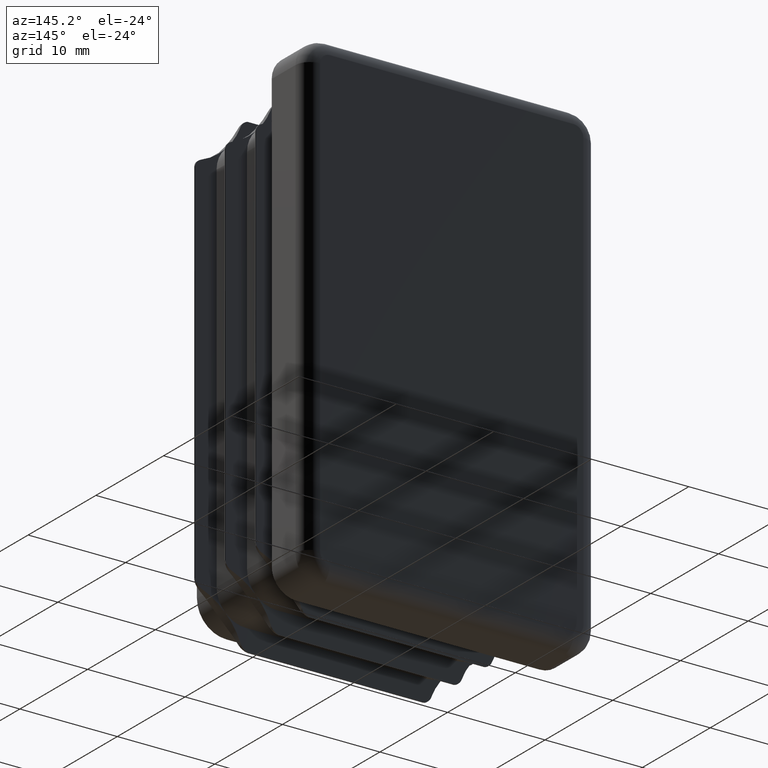
[diagram: clean part render]
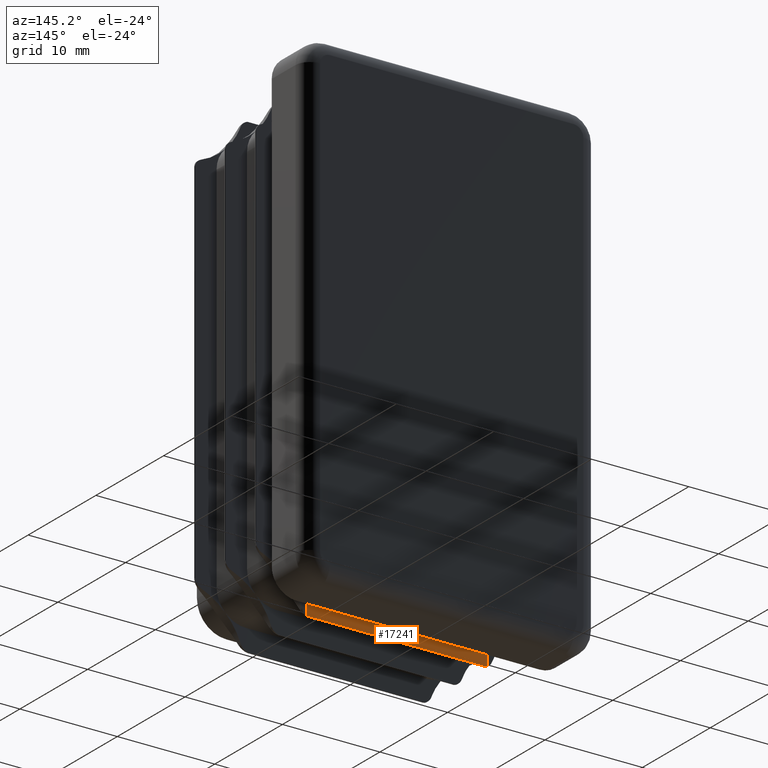
[diagram: same view with one face highlighted and labeled with its STEP entity id]
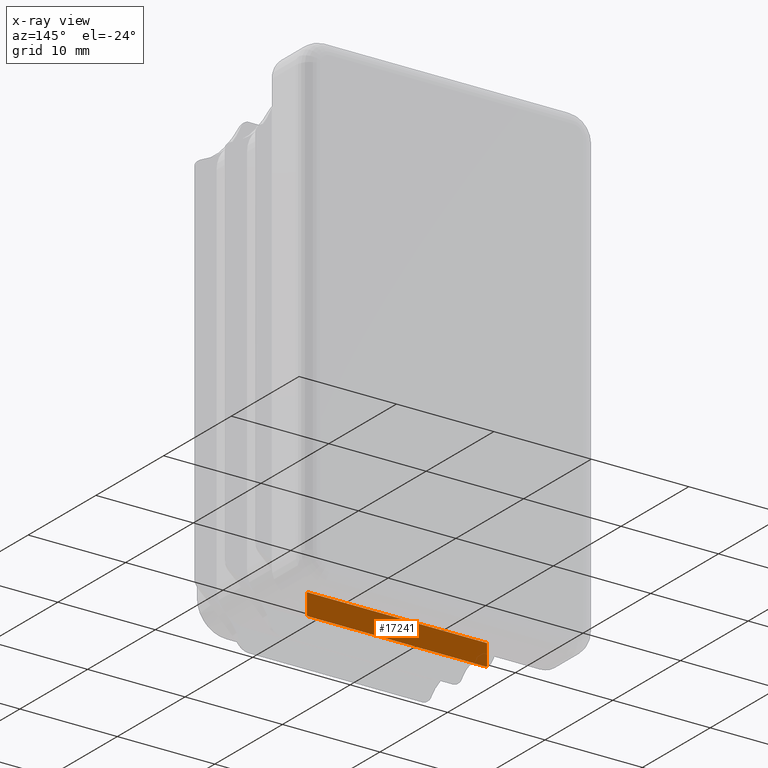
[diagram: x-ray of the same camera — body ghosted, the highlighted face saturated]
A machine part, auxiliary view. The second image highlights one B-rep face of the part: STEP entity #17241.
The next image is the same camera in x-ray: the body ghosted, the highlighted face saturated — about 0% of this face is hidden behind the body in this view.
In plain terms, the highlighted planar face has unit normal (0, -1, 0).
Its self-contained STEP definition (entity closure, byte-faithful):
#299 = DIRECTION ( 'NONE',  ( -1.000000000000000000, 0.000000000000000000, 0.000000000000000000 ) ) ;
#422 = DIRECTION ( 'NONE',  ( 0.000000000000000000, -0.000000000000000000, -1.000000000000000000 ) ) ;
#1007 = DIRECTION ( 'NONE',  ( -0.000000000000000000, -1.000000000000000000, 0.000000000000000000 ) ) ;
#1976 = EDGE_CURVE ( 'NONE', #7626, #16715, #4532, .T. ) ;
#2172 = DIRECTION ( 'NONE',  ( 0.000000000000000000, -1.000000000000000000, 0.000000000000000000 ) ) ;
#2495 = CARTESIAN_POINT ( 'NONE',  ( -9.249999999999994671, -3.100000000000000533, -22.24999999999999289 ) ) ;
#2686 = CARTESIAN_POINT ( 'NONE',  ( 9.250000000000008882, -3.100000000000000533, -24.40981028720144508 ) ) ;
#2795 = CIRCLE ( 'NONE', #14216, 1.000000000000000888 ) ;
#3566 = VECTOR ( 'NONE', #299, 1000.000000000000000 ) ;
#3893 = EDGE_CURVE ( 'NONE', #10647, #14397, #2795, .T. ) ;
#4283 = ORIENTED_EDGE ( 'NONE', *, *, #1976, .F. ) ;
#4532 = LINE ( 'NONE', #7723, #12044 ) ;
#6237 = ORIENTED_EDGE ( 'NONE', *, *, #3893, .F. ) ;
#6547 = CARTESIAN_POINT ( 'NONE',  ( 9.250000000000008882, -3.100000000000000533, -22.24999999999999289 ) ) ;
#7002 = ORIENTED_EDGE ( 'NONE', *, *, #18115, .F. ) ;
#7391 = CARTESIAN_POINT ( 'NONE',  ( 8.834975613604962419, -3.100000000000000533, -23.50000000000008527 ) ) ;
#7457 = DIRECTION ( 'NONE',  ( 0.000000000000000000, 1.000000000000000000, -0.000000000000000000 ) ) ;
#7626 = VERTEX_POINT ( 'NONE', #2686 ) ;
#7723 = CARTESIAN_POINT ( 'NONE',  ( 9.250000000000008882, -3.100000000000000533, -22.24999999999999289 ) ) ;
#7992 = FACE_OUTER_BOUND ( 'NONE', #8518, .T. ) ;
#8195 = LINE ( 'NONE', #15744, #3566 ) ;
#8379 = AXIS2_PLACEMENT_3D ( 'NONE', #7391, #7457, #16776 ) ;
#8518 = EDGE_LOOP ( 'NONE', ( #6237, #18678, #7002, #4283, #9767, #10468 ) ) ;
#9018 = CARTESIAN_POINT ( 'NONE',  ( -9.249999999999994671, -3.100000000000000533, -24.40981028720145218 ) ) ;
#9767 = ORIENTED_EDGE ( 'NONE', *, *, #19814, .T. ) ;
#10468 = ORIENTED_EDGE ( 'NONE', *, *, #15587, .T. ) ;
#10647 = VERTEX_POINT ( 'NONE', #9018 ) ;
#11203 = PLANE ( 'NONE',  #18467 ) ;
#12044 = VECTOR ( 'NONE', #12291, 1000.000000000000000 ) ;
#12291 = DIRECTION ( 'NONE',  ( 4.505775262277420615E-16, -0.000000000000000000, 1.000000000000000000 ) ) ;
#12336 = EDGE_CURVE ( 'NONE', #10647, #13585, #12742, .T. ) ;
#12523 = VECTOR ( 'NONE', #17992, 1000.000000000000000 ) ;
#12742 = LINE ( 'NONE', #2495, #12523 ) ;
#12813 = VECTOR ( 'NONE', #17607, 1000.000000000000000 ) ;
#12945 = CARTESIAN_POINT ( 'NONE',  ( 9.250000000000007105, -3.100000000000000533, -24.44999999999999929 ) ) ;
#13104 = CARTESIAN_POINT ( 'NONE',  ( -8.834975613604962419, -3.100000000000000533, -23.50000000000008527 ) ) ;
#13376 = VERTEX_POINT ( 'NONE', #19266 ) ;
#13585 = VERTEX_POINT ( 'NONE', #16640 ) ;
#14216 = AXIS2_PLACEMENT_3D ( 'NONE', #13104, #1007, #19316 ) ;
#14397 = VERTEX_POINT ( 'NONE', #18142 ) ;
#15587 = EDGE_CURVE ( 'NONE', #13376, #14397, #18385, .T. ) ;
#15744 = CARTESIAN_POINT ( 'NONE',  ( 9.250000000000008882, -3.100000000000000533, -22.24999999999999289 ) ) ;
#16640 = CARTESIAN_POINT ( 'NONE',  ( -9.249999999999992895, -3.100000000000000533, -22.25000000000000000 ) ) ;
#16715 = VERTEX_POINT ( 'NONE', #6547 ) ;
#16776 = DIRECTION ( 'NONE',  ( -3.469446951953611033E-14, 0.000000000000000000, -1.000000000000000000 ) ) ;
#16862 = CIRCLE ( 'NONE', #8379, 1.000000000000000888 ) ;
#17241 = ADVANCED_FACE ( 'NONE', ( #7992 ), #11203, .F. ) ;
#17397 = CARTESIAN_POINT ( 'NONE',  ( 9.250000000000008882, -3.100000000000000533, -22.24999999999999289 ) ) ;
#17607 = DIRECTION ( 'NONE',  ( -1.000000000000000000, 0.000000000000000000, 0.000000000000000000 ) ) ;
#17992 = DIRECTION ( 'NONE',  ( 4.505775262277420615E-16, -0.000000000000000000, 1.000000000000000000 ) ) ;
#18115 = EDGE_CURVE ( 'NONE', #16715, #13585, #8195, .T. ) ;
#18142 = CARTESIAN_POINT ( 'NONE',  ( -9.147225513525151896, -3.100000000000000533, -24.44999999999999929 ) ) ;
#18385 = LINE ( 'NONE', #12945, #12813 ) ;
#18467 = AXIS2_PLACEMENT_3D ( 'NONE', #17397, #2172, #422 ) ;
#18678 = ORIENTED_EDGE ( 'NONE', *, *, #12336, .T. ) ;
#19266 = CARTESIAN_POINT ( 'NONE',  ( 9.147225513525151896, -3.100000000000000533, -24.44999999999999929 ) ) ;
#19316 = DIRECTION ( 'NONE',  ( 0.000000000000000000, 0.000000000000000000, -1.000000000000000000 ) ) ;
#19814 = EDGE_CURVE ( 'NONE', #7626, #13376, #16862, .T. ) ;